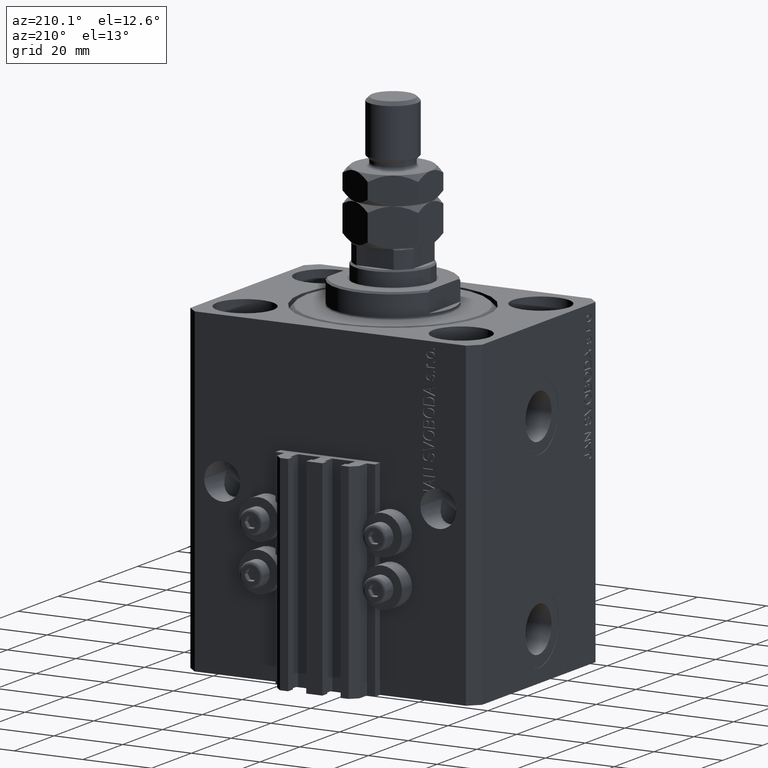
[diagram: clean part render]
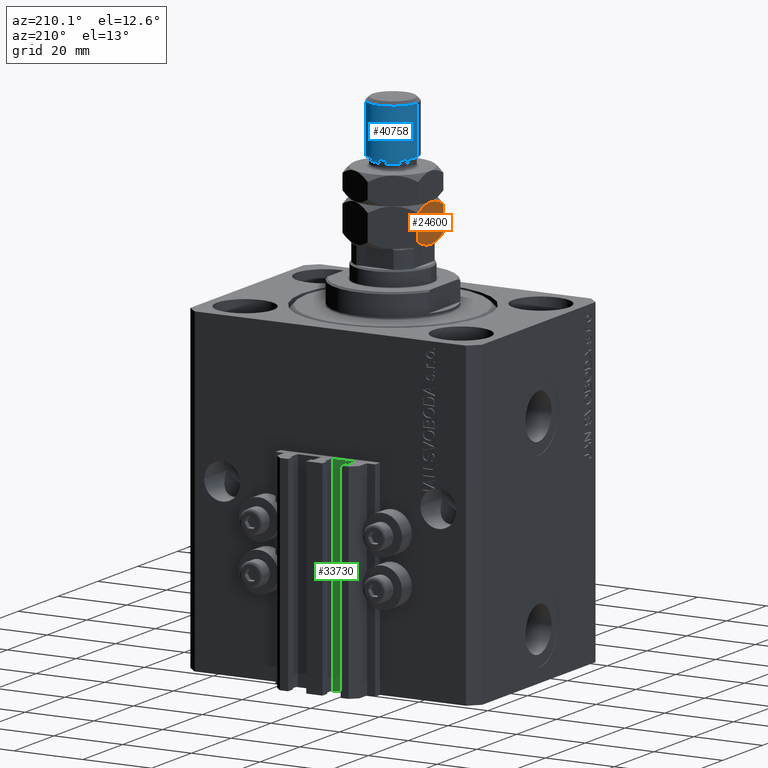
[diagram: same view with three faces highlighted in distinct colors, each labeled with its STEP entity id]
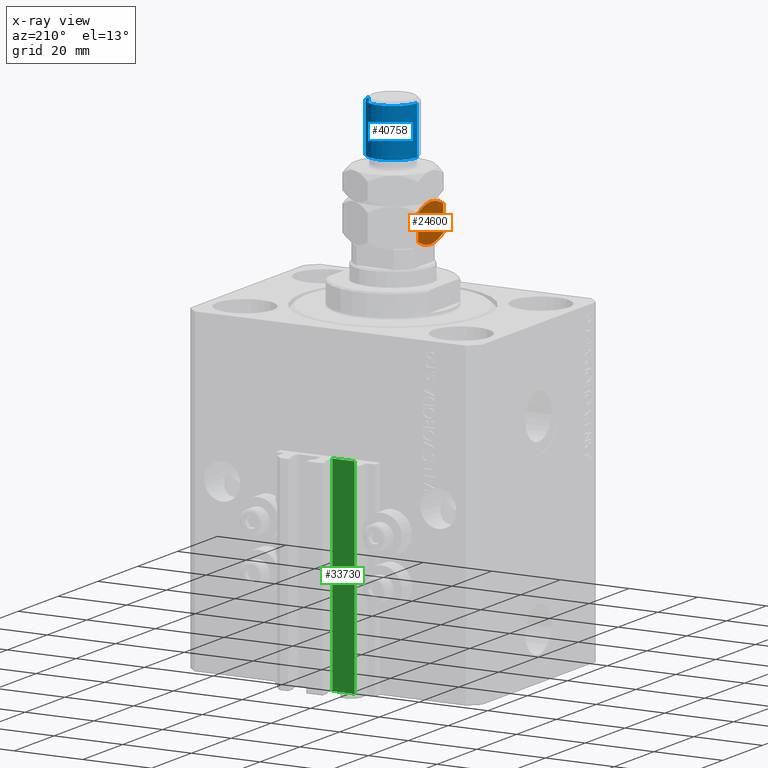
[diagram: x-ray of the same camera — body ghosted, the three highlighted faces saturated]
A machine part, auxiliary view with three faces highlighted in distinct colors.
The next image is the same camera in x-ray (body ghosted, the three faces saturated) — at least one of them is partly hidden behind the body in this view.
Their STEP definitions:

[orange] entity #24600 — the highlighted planar face has unit normal (1, 0, 0).
#1217 = AXIS2_PLACEMENT_3D ( 'NONE', #4233, #19374, #32766 ) ;
#2021 = CARTESIAN_POINT ( 'NONE',  ( -11.00000000000000178, -1.099784029505286753, 10.95829822225798189 ) ) ;
#3261 = ORIENTED_EDGE ( 'NONE', *, *, #41609, .T. ) ;
#3267 = CARTESIAN_POINT ( 'NONE',  ( -10.99999999999999822, 5.856287164594794703, 9.545576976073807174 ) ) ;
#3783 = CARTESIAN_POINT ( 'NONE',  ( -11.00000000000000178, 4.344649988696095200, 0.7819333922108999690 ) ) ;
#4030 = CARTESIAN_POINT ( 'NONE',  ( -11.00000000000000178, 0.5516605423237670447, -8.385626177817573357E-17 ) ) ;
#4233 = CARTESIAN_POINT ( 'NONE',  ( -11.00000000000000000, 6.350852961085890591, 11.00000000000000000 ) ) ;
#4234 = CARTESIAN_POINT ( 'NONE',  ( -11.00000000000000000, 6.350852961085890591, 9.298294077828234805 ) ) ;
#4997 = CARTESIAN_POINT ( 'NONE',  ( -11.00000000000000178, -4.344649988696089871, 10.21806660778910114 ) ) ;
#5553 = CARTESIAN_POINT ( 'NONE',  ( -11.00000000000000000, 0.000000000000000000, 0.000000000000000000 ) ) ;
#5967 = CARTESIAN_POINT ( 'NONE',  ( -10.99999999999999822, -5.363576505757326807, 9.791932305492514033 ) ) ;
#6005 = CARTESIAN_POINT ( 'NONE',  ( -11.00000000000000178, 1.381217716854158839, 10.91695300848609840 ) ) ;
#6980 = CARTESIAN_POINT ( 'NONE',  ( -11.00000000000000355, 2.743986917173868889, 10.67427553246086447 ) ) ;
#7164 = CARTESIAN_POINT ( 'NONE',  ( -11.00000000000000000, 6.350852961085892368, 1.701705922171765195 ) ) ;
#7988 = CARTESIAN_POINT ( 'NONE',  ( -11.00000000000000000, 0.000000000000000000, 0.000000000000000000 ) ) ;
#9792 = EDGE_CURVE ( 'NONE', #30902, #31567, #41560, .T. ) ;
#10734 = CARTESIAN_POINT ( 'NONE',  ( -10.99999999999999822, 5.363576505757334800, 1.208067694507487744 ) ) ;
#10844 = VECTOR ( 'NONE', #12257, 1000.000000000000000 ) ;
#11181 = B_SPLINE_CURVE_WITH_KNOTS ( 'NONE', 3,
 ( #17681, #3267, #40042, #14692, #29809, #6980, #24874, #6005, #21151, #36311, #13716, #36562 ),
 .UNSPECIFIED., .F., .F.,
 ( 4, 2, 2, 2, 2, 4 ),
 ( 0.01886453216956118090, 0.02051917601608021710, 0.02217381986259925331, 0.02382846370911829298, 0.02465578563237780935, 0.02548310755563732918 ),
 .UNSPECIFIED. ) ;
#12257 = DIRECTION ( 'NONE',  ( -0.000000000000000000, -0.000000000000000000, -1.000000000000000000 ) ) ;
#12350 = ORIENTED_EDGE ( 'NONE', *, *, #15338, .F. ) ;
#12610 = EDGE_LOOP ( 'NONE', ( #35177, #27474, #12350, #14108, #3261, #43031 ) ) ;
#12946 = CARTESIAN_POINT ( 'NONE',  ( -10.99999999999999467, 0.000000000000000000, 11.00000000000000000 ) ) ;
#12974 = CARTESIAN_POINT ( 'NONE',  ( -11.00000000000000000, 0.000000000000000000, 0.000000000000000000 ) ) ;
#13716 = CARTESIAN_POINT ( 'NONE',  ( -11.00000000000000000, 0.2746235576716384852, 11.00000000000000355 ) ) ;
#14108 = ORIENTED_EDGE ( 'NONE', *, *, #47578, .F. ) ;
#14692 = CARTESIAN_POINT ( 'NONE',  ( -10.99999999999999822, 4.323029509133805348, 10.19034626474623195 ) ) ;
#15338 = EDGE_CURVE ( 'NONE', #20265, #44189, #21496, .T. ) ;
#16490 = CARTESIAN_POINT ( 'NONE',  ( -11.00000000000000178, -1.381217716854155286, 0.08304699151390193546 ) ) ;
#17168 = CARTESIAN_POINT ( 'NONE',  ( -11.00000000000000000, -6.350852961085885262, 9.298294077828238358 ) ) ;
#17681 = CARTESIAN_POINT ( 'NONE',  ( -11.00000000000000000, 6.350852961085890591, 9.298294077828234805 ) ) ;
#19374 = DIRECTION ( 'NONE',  ( 1.000000000000000000, 0.000000000000000000, -0.000000000000000000 ) ) ;
#20203 = CARTESIAN_POINT ( 'NONE',  ( -11.00000000000000178, -0.5501206218979342033, 0.01029861699449343727 ) ) ;
#20265 = VERTEX_POINT ( 'NONE', #41474 ) ;
#21151 = CARTESIAN_POINT ( 'NONE',  ( -11.00000000000000000, 1.102880524211963253, 10.94828572630293273 ) ) ;
#21496 = B_SPLINE_CURVE_WITH_KNOTS ( 'NONE', 3,
 ( #12946, #28081, #2021, #43016, #28574, #4997, #5967, #17168 ),
 .UNSPECIFIED., .F., .F.,
 ( 4, 2, 2, 4 ),
 ( 0.02548310755563732918, 0.02714502201312678914, 0.02880693647061624910, 0.03213076538559517248 ),
 .UNSPECIFIED. ) ;
#23131 = CARTESIAN_POINT ( 'NONE',  ( -11.00000000000000000, 6.350852961085892368, 1.701705922171765195 ) ) ;
#24600 = ADVANCED_FACE ( 'NONE', ( #27317 ), #42505, .F. ) ;
#24657 = CARTESIAN_POINT ( 'NONE',  ( -11.00000000000000178, -5.349315167928746284, 1.222704691498690321 ) ) ;
#24874 = CARTESIAN_POINT ( 'NONE',  ( -10.99999999999999822, 2.205563362884376488, 10.79423439979602861 ) ) ;
#27317 = FACE_OUTER_BOUND ( 'NONE', #12610, .T. ) ;
#27474 = ORIENTED_EDGE ( 'NONE', *, *, #49098, .F. ) ;
#27615 = VERTEX_POINT ( 'NONE', #7164 ) ;
#27655 = VECTOR ( 'NONE', #41643, 1000.000000000000000 ) ;
#27892 = CARTESIAN_POINT ( 'NONE',  ( -11.00000000000000355, -2.743986917173865336, 0.3257244675391401389 ) ) ;
#28081 = CARTESIAN_POINT ( 'NONE',  ( -11.00000000000000178, -0.5516605423237683770, 11.00000000000000355 ) ) ;
#28574 = CARTESIAN_POINT ( 'NONE',  ( -11.00000000000000000, -2.731989201781029220, 10.67753305448841772 ) ) ;
#29604 = CARTESIAN_POINT ( 'NONE',  ( -11.00000000000000178, 1.099784029505287197, 0.04170177774201792864 ) ) ;
#29809 = CARTESIAN_POINT ( 'NONE',  ( -11.00000000000000000, 3.802713407336418605, 10.37230892346509670 ) ) ;
#29941 = LINE ( 'NONE', #45621, #27655 ) ;
#30329 = CARTESIAN_POINT ( 'NONE',  ( -10.99999999999999822, 2.189438957741033587, 0.2028253662507157051 ) ) ;
#30469 = EDGE_CURVE ( 'NONE', #31567, #27615, #42299, .T. ) ;
#30902 = VERTEX_POINT ( 'NONE', #44978 ) ;
#31567 = VERTEX_POINT ( 'NONE', #12974 ) ;
#31612 = CARTESIAN_POINT ( 'NONE',  ( -10.99999999999999822, -4.323029509133801795, 0.8096537352537663823 ) ) ;
#32111 = CARTESIAN_POINT ( 'NONE',  ( -11.00000000000000000, -0.2746235576716408167, 4.192813088908779283E-17 ) ) ;
#32766 = DIRECTION ( 'NONE',  ( -0.000000000000000000, 0.000000000000000000, -1.000000000000000000 ) ) ;
#35177 = ORIENTED_EDGE ( 'NONE', *, *, #9792, .F. ) ;
#35601 = CARTESIAN_POINT ( 'NONE',  ( -11.00000000000000000, -1.102880524211966140, 0.05171427369706943500 ) ) ;
#35846 = CARTESIAN_POINT ( 'NONE',  ( -10.99999999999999822, -2.205563362884371603, 0.2057656002039695009 ) ) ;
#36311 = CARTESIAN_POINT ( 'NONE',  ( -11.00000000000000178, 0.5501206218979307616, 10.98970138300551191 ) ) ;
#36562 = CARTESIAN_POINT ( 'NONE',  ( -10.99999999999999467, 0.000000000000000000, 11.00000000000000000 ) ) ;
#40042 = CARTESIAN_POINT ( 'NONE',  ( -11.00000000000000178, 5.349315167928749837, 9.777295308501310345 ) ) ;
#41474 = CARTESIAN_POINT ( 'NONE',  ( -10.99999999999999467, 0.000000000000000000, 11.00000000000000000 ) ) ;
#41560 = B_SPLINE_CURVE_WITH_KNOTS ( 'NONE', 3,
 ( #43563, #47055, #24657, #31612, #42830, #27892, #35846, #16490, #35601, #20203, #32111, #5553 ),
 .UNSPECIFIED., .F., .F.,
 ( 4, 2, 2, 2, 2, 4 ),
 ( 0.01886453216956118784, 0.02051917601608022057, 0.02217381986259925677, 0.02382846370911829298, 0.02465578563237780935, 0.02548310755563732571 ),
 .UNSPECIFIED. ) ;
#41609 = EDGE_CURVE ( 'NONE', #48499, #27615, #46311, .T. ) ;
#41643 = DIRECTION ( 'NONE',  ( -0.000000000000000000, -0.000000000000000000, -1.000000000000000000 ) ) ;
#42299 = B_SPLINE_CURVE_WITH_KNOTS ( 'NONE', 3,
 ( #7988, #4030, #29604, #30329, #44792, #3783, #10734, #23131 ),
 .UNSPECIFIED., .F., .F.,
 ( 4, 2, 2, 4 ),
 ( 0.02548310755563732571, 0.02714502201312678914, 0.02880693647061625257, 0.03213076538559517942 ),
 .UNSPECIFIED. ) ;
#42505 = PLANE ( 'NONE',  #1217 ) ;
#42830 = CARTESIAN_POINT ( 'NONE',  ( -11.00000000000000000, -3.802713407336412832, 0.6276910765349058563 ) ) ;
#43016 = CARTESIAN_POINT ( 'NONE',  ( -10.99999999999999822, -2.189438957741030478, 10.79717463374928421 ) ) ;
#43031 = ORIENTED_EDGE ( 'NONE', *, *, #30469, .F. ) ;
#43333 = CARTESIAN_POINT ( 'NONE',  ( -11.00000000000000000, 6.350852961085890591, 11.00000000000000000 ) ) ;
#43563 = CARTESIAN_POINT ( 'NONE',  ( -11.00000000000000000, -6.350852961085885262, 1.701705922171762309 ) ) ;
#44189 = VERTEX_POINT ( 'NONE', #44417 ) ;
#44417 = CARTESIAN_POINT ( 'NONE',  ( -11.00000000000000000, -6.350852961085885262, 9.298294077828238358 ) ) ;
#44792 = CARTESIAN_POINT ( 'NONE',  ( -11.00000000000000000, 2.731989201781030108, 0.3224669455115858896 ) ) ;
#44978 = CARTESIAN_POINT ( 'NONE',  ( -11.00000000000000000, -6.350852961085885262, 1.701705922171762309 ) ) ;
#45621 = CARTESIAN_POINT ( 'NONE',  ( -11.00000000000000000, -6.350852961085885262, 11.00000000000000000 ) ) ;
#46311 = LINE ( 'NONE', #43333, #10844 ) ;
#47055 = CARTESIAN_POINT ( 'NONE',  ( -10.99999999999999822, -5.856287164594788486, 1.454423023926191938 ) ) ;
#47578 = EDGE_CURVE ( 'NONE', #48499, #20265, #11181, .T. ) ;
#48499 = VERTEX_POINT ( 'NONE', #4234 ) ;
#49098 = EDGE_CURVE ( 'NONE', #44189, #30902, #29941, .T. ) ;

[blue] entity #40758 — the highlighted cylindrical surface (edge-blend (fillet) strip) has radius 7 mm, axis along (-0, -0, -1).
#334 = FACE_OUTER_BOUND ( 'NONE', #22037, .T. ) ;
#861 = VERTEX_POINT ( 'NONE', #33977 ) ;
#940 = CARTESIAN_POINT ( 'NONE',  ( -7.000000000000000000, 0.000000000000000000, 22.00000000000000355 ) ) ;
#1781 = AXIS2_PLACEMENT_3D ( 'NONE', #29387, #29863, #14989 ) ;
#3041 = EDGE_CURVE ( 'NONE', #861, #48001, #17616, .T. ) ;
#4270 = ORIENTED_EDGE ( 'NONE', *, *, #32400, .T. ) ;
#4945 = DIRECTION ( 'NONE',  ( -0.000000000000000000, -0.000000000000000000, -1.000000000000000000 ) ) ;
#8646 = CARTESIAN_POINT ( 'NONE',  ( -7.000000000000000000, 0.000000000000000000, 35.99999999999999289 ) ) ;
#10668 = CARTESIAN_POINT ( 'NONE',  ( 7.000000000000000000, 8.572527594031473190E-16, 37.00000000000000000 ) ) ;
#14989 = DIRECTION ( 'NONE',  ( 1.000000000000000000, 0.000000000000000000, 0.000000000000000000 ) ) ;
#15049 = DIRECTION ( 'NONE',  ( 1.000000000000000000, 0.000000000000000000, 0.000000000000000000 ) ) ;
#15492 = CYLINDRICAL_SURFACE ( 'NONE', #28276, 7.000000000000000000 ) ;
#17616 = CIRCLE ( 'NONE', #1781, 7.000000000000000000 ) ;
#18373 = LINE ( 'NONE', #10668, #46634 ) ;
#20583 = CARTESIAN_POINT ( 'NONE',  ( -7.000000000000000000, 0.000000000000000000, 37.00000000000000000 ) ) ;
#21468 = EDGE_CURVE ( 'NONE', #48803, #48001, #46184, .T. ) ;
#21681 = ORIENTED_EDGE ( 'NONE', *, *, #42180, .T. ) ;
#21948 = ORIENTED_EDGE ( 'NONE', *, *, #21468, .F. ) ;
#22037 = EDGE_LOOP ( 'NONE', ( #4270, #21681, #43299, #21948 ) ) ;
#23462 = CARTESIAN_POINT ( 'NONE',  ( 7.000000000000000000, 8.572527594031473190E-16, 35.99999999999999289 ) ) ;
#28152 = VECTOR ( 'NONE', #4945, 1000.000000000000000 ) ;
#28276 = AXIS2_PLACEMENT_3D ( 'NONE', #30861, #45799, #30615 ) ;
#29387 = CARTESIAN_POINT ( 'NONE',  ( 0.000000000000000000, 0.000000000000000000, 22.00000000000000355 ) ) ;
#29863 = DIRECTION ( 'NONE',  ( -0.000000000000000000, -0.000000000000000000, 1.000000000000000000 ) ) ;
#30615 = DIRECTION ( 'NONE',  ( -1.000000000000000000, 0.000000000000000000, 0.000000000000000000 ) ) ;
#30861 = CARTESIAN_POINT ( 'NONE',  ( 0.000000000000000000, 0.000000000000000000, 37.00000000000000000 ) ) ;
#32400 = EDGE_CURVE ( 'NONE', #48803, #39494, #44331, .T. ) ;
#33977 = CARTESIAN_POINT ( 'NONE',  ( 7.000000000000000000, 8.572527594031473190E-16, 22.00000000000000355 ) ) ;
#37155 = AXIS2_PLACEMENT_3D ( 'NONE', #37160, #37405, #15049 ) ;
#37160 = CARTESIAN_POINT ( 'NONE',  ( 0.000000000000000000, 0.000000000000000000, 35.99999999999999289 ) ) ;
#37405 = DIRECTION ( 'NONE',  ( 0.000000000000000000, 0.000000000000000000, -1.000000000000000000 ) ) ;
#39494 = VERTEX_POINT ( 'NONE', #23462 ) ;
#40758 = ADVANCED_FACE ( 'NONE', ( #334 ), #15492, .T. ) ;
#42180 = EDGE_CURVE ( 'NONE', #39494, #861, #18373, .T. ) ;
#43299 = ORIENTED_EDGE ( 'NONE', *, *, #3041, .T. ) ;
#44331 = CIRCLE ( 'NONE', #37155, 7.000000000000000000 ) ;
#45799 = DIRECTION ( 'NONE',  ( -0.000000000000000000, -0.000000000000000000, -1.000000000000000000 ) ) ;
#46184 = LINE ( 'NONE', #20583, #28152 ) ;
#46634 = VECTOR ( 'NONE', #48708, 1000.000000000000000 ) ;
#48001 = VERTEX_POINT ( 'NONE', #940 ) ;
#48708 = DIRECTION ( 'NONE',  ( -0.000000000000000000, -0.000000000000000000, -1.000000000000000000 ) ) ;
#48803 = VERTEX_POINT ( 'NONE', #8646 ) ;

[green] entity #33730 — the highlighted planar face has unit normal (0, 1, 0).
#746 = LINE ( 'NONE', #20605, #18978 ) ;
#896 = PLANE ( 'NONE',  #32421 ) ;
#4291 = DIRECTION ( 'NONE',  ( -1.000000000000000000, 0.000000000000000000, 0.000000000000000000 ) ) ;
#5142 = VECTOR ( 'NONE', #4291, 1000.000000000000000 ) ;
#8329 = CARTESIAN_POINT ( 'NONE',  ( -1.800000000000000933, 33.50000000000000000, -93.00000000000000000 ) ) ;
#8836 = EDGE_CURVE ( 'NONE', #25198, #35631, #27195, .T. ) ;
#13793 = CARTESIAN_POINT ( 'NONE',  ( -1.800000000000000933, 33.50000000000000000, -93.00000000000000000 ) ) ;
#13912 = VECTOR ( 'NONE', #27410, 1000.000000000000000 ) ;
#16593 = VERTEX_POINT ( 'NONE', #26563 ) ;
#16641 = CARTESIAN_POINT ( 'NONE',  ( -8.199999999999997513, 33.50000000000000000, -93.00000000000000000 ) ) ;
#18978 = VECTOR ( 'NONE', #38506, 1000.000000000000000 ) ;
#19189 = LINE ( 'NONE', #21516, #5142 ) ;
#19514 = DIRECTION ( 'NONE',  ( 0.000000000000000000, 1.000000000000000000, -0.000000000000000000 ) ) ;
#20605 = CARTESIAN_POINT ( 'NONE',  ( -8.199999999999997513, 33.50000000000000000, -93.00000000000000000 ) ) ;
#20674 = EDGE_CURVE ( 'NONE', #25198, #24343, #46572, .T. ) ;
#21516 = CARTESIAN_POINT ( 'NONE',  ( -1.800000000000000933, 33.50000000000000000, -33.00000000000000000 ) ) ;
#22469 = ORIENTED_EDGE ( 'NONE', *, *, #24051, .F. ) ;
#24051 = EDGE_CURVE ( 'NONE', #24343, #16593, #19189, .T. ) ;
#24124 = ORIENTED_EDGE ( 'NONE', *, *, #8836, .T. ) ;
#24343 = VERTEX_POINT ( 'NONE', #44278 ) ;
#24386 = ORIENTED_EDGE ( 'NONE', *, *, #46858, .T. ) ;
#25198 = VERTEX_POINT ( 'NONE', #13793 ) ;
#26563 = CARTESIAN_POINT ( 'NONE',  ( -8.199999999999997513, 33.50000000000000000, -33.00000000000000000 ) ) ;
#26969 = FACE_OUTER_BOUND ( 'NONE', #43303, .T. ) ;
#27195 = LINE ( 'NONE', #8329, #37614 ) ;
#27410 = DIRECTION ( 'NONE',  ( 0.000000000000000000, 0.000000000000000000, 1.000000000000000000 ) ) ;
#28360 = ORIENTED_EDGE ( 'NONE', *, *, #20674, .F. ) ;
#31380 = CARTESIAN_POINT ( 'NONE',  ( -1.800000000000000933, 33.50000000000000000, -93.00000000000000000 ) ) ;
#32421 = AXIS2_PLACEMENT_3D ( 'NONE', #38410, #19514, #42393 ) ;
#33730 = ADVANCED_FACE ( 'NONE', ( #26969 ), #896, .T. ) ;
#35631 = VERTEX_POINT ( 'NONE', #16641 ) ;
#37614 = VECTOR ( 'NONE', #49116, 1000.000000000000000 ) ;
#38410 = CARTESIAN_POINT ( 'NONE',  ( -1.800000000000000933, 33.50000000000000000, -93.00000000000000000 ) ) ;
#38506 = DIRECTION ( 'NONE',  ( 0.000000000000000000, 0.000000000000000000, 1.000000000000000000 ) ) ;
#42393 = DIRECTION ( 'NONE',  ( 0.000000000000000000, 0.000000000000000000, 1.000000000000000000 ) ) ;
#43303 = EDGE_LOOP ( 'NONE', ( #22469, #28360, #24124, #24386 ) ) ;
#44278 = CARTESIAN_POINT ( 'NONE',  ( -1.800000000000000933, 33.50000000000000000, -33.00000000000000000 ) ) ;
#46572 = LINE ( 'NONE', #31380, #13912 ) ;
#46858 = EDGE_CURVE ( 'NONE', #35631, #16593, #746, .T. ) ;
#49116 = DIRECTION ( 'NONE',  ( -1.000000000000000000, 0.000000000000000000, 0.000000000000000000 ) ) ;